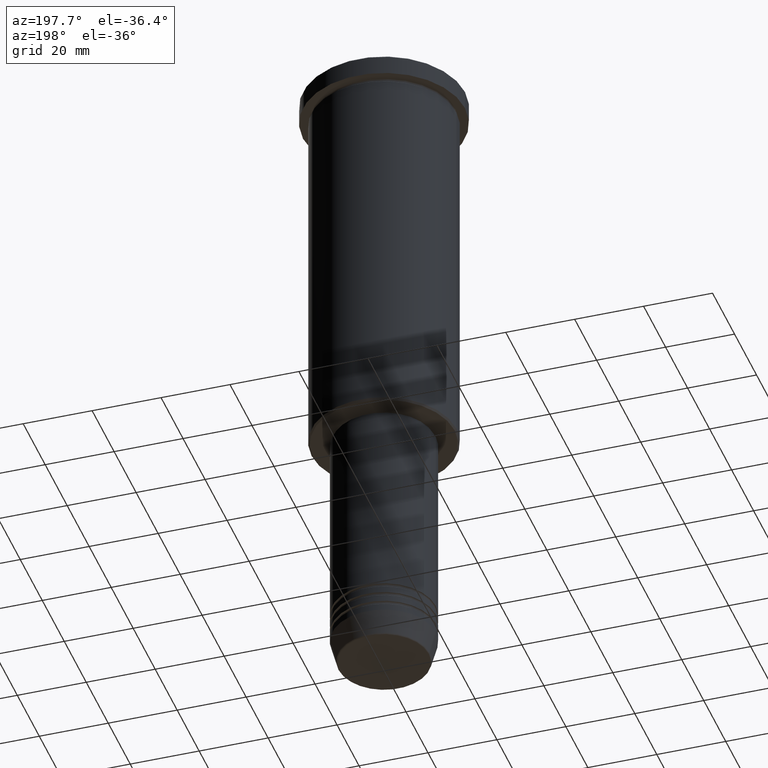
[diagram: clean part render]
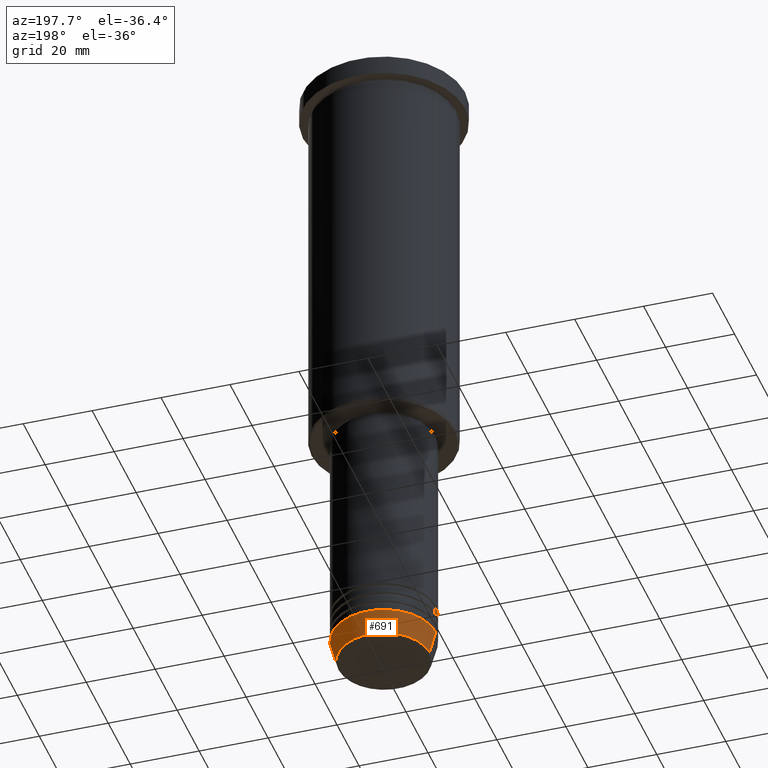
[diagram: same view with one face highlighted and labeled with its STEP entity id]
A machine part, auxiliary view. The second image highlights one B-rep face of the part: STEP entity #691.
In plain terms, the highlighted conical surface has half-angle 15 deg.
Its self-contained STEP definition (entity closure, byte-faithful):
#25 = CARTESIAN_POINT ( 'NONE',  ( -15.00000000000000000, 1.836970198721029589E-15, -184.0000000000000284 ) ) ;
#47 = VECTOR ( 'NONE', #289, 1000.000000000000000 ) ;
#54 = CARTESIAN_POINT ( 'NONE',  ( 15.00000000000000000, 0.000000000000000000, -184.0000000000000284 ) ) ;
#62 = AXIS2_PLACEMENT_3D ( 'NONE', #765, #216, #838 ) ;
#87 = VERTEX_POINT ( 'NONE', #817 ) ;
#102 = VECTOR ( 'NONE', #535, 1000.000000000000000 ) ;
#177 = ORIENTED_EDGE ( 'NONE', *, *, #763, .F. ) ;
#210 = CARTESIAN_POINT ( 'NONE',  ( 0.000000000000000000, 0.000000000000000000, -190.6294095225512422 ) ) ;
#216 = DIRECTION ( 'NONE',  ( -0.000000000000000000, -0.000000000000000000, 1.000000000000000000 ) ) ;
#255 = CARTESIAN_POINT ( 'NONE',  ( 15.00000000000000000, 0.000000000000000000, -184.0000000000000284 ) ) ;
#275 = ORIENTED_EDGE ( 'NONE', *, *, #925, .F. ) ;
#285 = FACE_OUTER_BOUND ( 'NONE', #681, .T. ) ;
#289 = DIRECTION ( 'NONE',  ( -0.2588190451025213501, 3.169619151431772337E-17, 0.9659258262890680902 ) ) ;
#362 = VERTEX_POINT ( 'NONE', #54 ) ;
#375 = DIRECTION ( 'NONE',  ( -0.000000000000000000, -0.000000000000000000, 1.000000000000000000 ) ) ;
#446 = VERTEX_POINT ( 'NONE', #1060 ) ;
#453 = CIRCLE ( 'NONE', #710, 13.22365507213719305 ) ;
#471 = AXIS2_PLACEMENT_3D ( 'NONE', #514, #692, #701 ) ;
#512 = ORIENTED_EDGE ( 'NONE', *, *, #1124, .T. ) ;
#514 = CARTESIAN_POINT ( 'NONE',  ( 0.000000000000000000, 0.000000000000000000, -184.0000000000000284 ) ) ;
#535 = DIRECTION ( 'NONE',  ( 0.2588190451025213501, 0.000000000000000000, 0.9659258262890680902 ) ) ;
#681 = EDGE_LOOP ( 'NONE', ( #512, #820, #177, #275 ) ) ;
#691 = ADVANCED_FACE ( 'NONE', ( #285 ), #942, .T. ) ;
#692 = DIRECTION ( 'NONE',  ( -0.000000000000000000, -0.000000000000000000, 1.000000000000000000 ) ) ;
#701 = DIRECTION ( 'NONE',  ( 1.000000000000000000, 0.000000000000000000, 0.000000000000000000 ) ) ;
#710 = AXIS2_PLACEMENT_3D ( 'NONE', #210, #375, #915 ) ;
#735 = CARTESIAN_POINT ( 'NONE',  ( 13.22365507213719305, 0.000000000000000000, -190.6294095225512422 ) ) ;
#763 = EDGE_CURVE ( 'NONE', #362, #87, #1074, .T. ) ;
#765 = CARTESIAN_POINT ( 'NONE',  ( 0.000000000000000000, 0.000000000000000000, -184.0000000000000284 ) ) ;
#803 = LINE ( 'NONE', #255, #102 ) ;
#817 = CARTESIAN_POINT ( 'NONE',  ( -15.00000000000000000, 1.836970198721029589E-15, -184.0000000000000284 ) ) ;
#820 = ORIENTED_EDGE ( 'NONE', *, *, #1147, .T. ) ;
#838 = DIRECTION ( 'NONE',  ( 1.000000000000000000, 0.000000000000000000, 0.000000000000000000 ) ) ;
#915 = DIRECTION ( 'NONE',  ( 1.000000000000000000, 0.000000000000000000, 0.000000000000000000 ) ) ;
#925 = EDGE_CURVE ( 'NONE', #940, #362, #803, .T. ) ;
#940 = VERTEX_POINT ( 'NONE', #735 ) ;
#942 = CONICAL_SURFACE ( 'NONE', #62, 15.00000000000000000, 0.2617993877991500740 ) ;
#1060 = CARTESIAN_POINT ( 'NONE',  ( -13.22365507213719305, 1.728200442216588583E-15, -190.6294095225512422 ) ) ;
#1074 = CIRCLE ( 'NONE', #471, 15.00000000000000000 ) ;
#1090 = LINE ( 'NONE', #25, #47 ) ;
#1124 = EDGE_CURVE ( 'NONE', #940, #446, #453, .T. ) ;
#1147 = EDGE_CURVE ( 'NONE', #446, #87, #1090, .T. ) ;